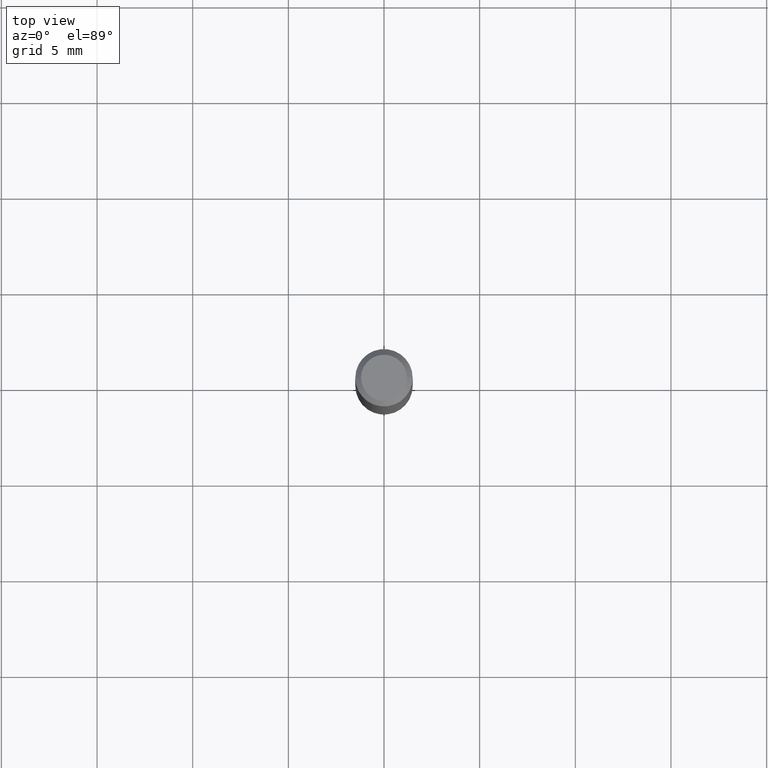
[diagram: clean part render]
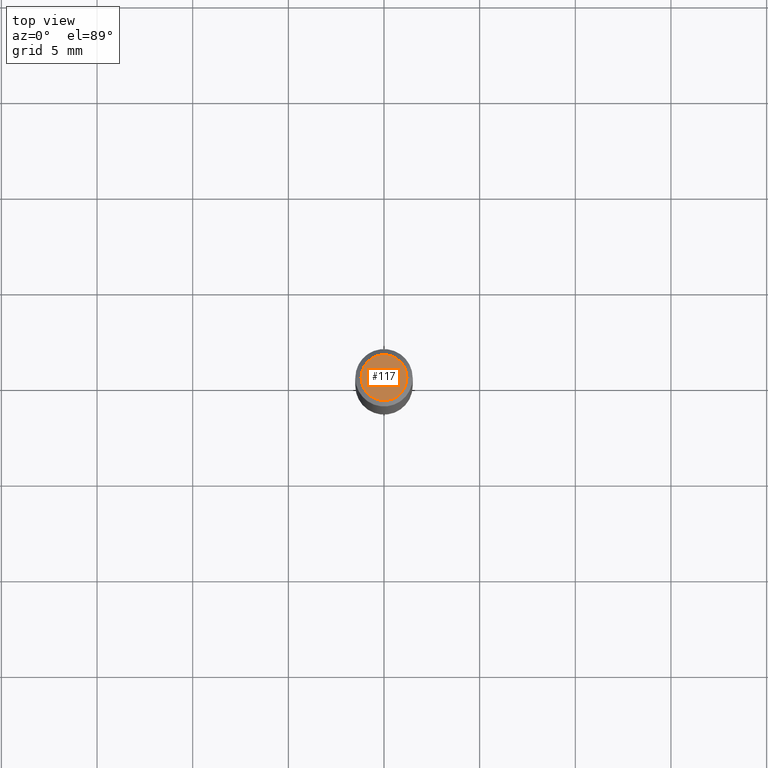
[diagram: same view with one face highlighted and labeled with its STEP entity id]
A machine part, top view. The second image highlights one B-rep face of the part: STEP entity #117.
In plain terms, the highlighted planar face has unit normal (0, -0, -1).
Its self-contained STEP definition (entity closure, byte-faithful):
#10 = DIRECTION ( 'NONE',  ( -2.445468806185136597E-29, 3.491481338843145583E-15, 1.000000000000000000 ) ) ;
#33 = DIRECTION ( 'NONE',  ( -2.445468806185136597E-29, 3.491481338843145583E-15, 1.000000000000000000 ) ) ;
#49 = ORIENTED_EDGE ( 'NONE', *, *, #300, .T. ) ;
#72 = DIRECTION ( 'NONE',  ( 1.000000000000000000, -6.982962677686266711E-15, 4.876185090822587894E-29 ) ) ;
#74 = PLANE ( 'NONE',  #421 ) ;
#79 = AXIS2_PLACEMENT_3D ( 'NONE', #202, #10, #233 ) ;
#102 = CARTESIAN_POINT ( 'NONE',  ( 4.132873053354867254E-48, -5.900647395337818946E-34, -1.690012582823346072E-19 ) ) ;
#117 = ADVANCED_FACE ( 'NONE', ( #484 ), #74, .F. ) ;
#141 = VERTEX_POINT ( 'NONE', #359 ) ;
#169 = EDGE_LOOP ( 'NONE', ( #318, #49 ) ) ;
#173 = CARTESIAN_POINT ( 'NONE',  ( -0.04724000000000000421, 3.504923541997677355E-16, -3.380025165670481712E-19 ) ) ;
#198 = VERTEX_POINT ( 'NONE', #173 ) ;
#202 = CARTESIAN_POINT ( 'NONE',  ( 8.265746106709734507E-48, -1.180129479067563789E-33, -3.380025165646692144E-19 ) ) ;
#233 = DIRECTION ( 'NONE',  ( 1.000000000000000000, -6.982962677686266711E-15, 4.876185090822587894E-29 ) ) ;
#256 = DIRECTION ( 'NONE',  ( 2.438088387897960049E-29, -3.491481338843145188E-15, -1.000000000000000000 ) ) ;
#260 = EDGE_CURVE ( 'NONE', #198, #141, #382, .T. ) ;
#300 = EDGE_CURVE ( 'NONE', #141, #198, #355, .T. ) ;
#318 = ORIENTED_EDGE ( 'NONE', *, *, #260, .T. ) ;
#355 = CIRCLE ( 'NONE', #79, 0.04724000000000000421 ) ;
#359 = CARTESIAN_POINT ( 'NONE',  ( 0.04724000000000000421, -3.852183633974369345E-16, -3.380025165621689721E-19 ) ) ;
#382 = CIRCLE ( 'NONE', #450, 0.04724000000000000421 ) ;
#416 = DIRECTION ( 'NONE',  ( -1.000000000000000000, 6.982962677686265922E-15, -4.876176775795935793E-29 ) ) ;
#421 = AXIS2_PLACEMENT_3D ( 'NONE', #102, #256, #416 ) ;
#450 = AXIS2_PLACEMENT_3D ( 'NONE', #488, #33, #72 ) ;
#484 = FACE_OUTER_BOUND ( 'NONE', #169, .T. ) ;
#488 = CARTESIAN_POINT ( 'NONE',  ( 8.265746106709734507E-48, -1.180129479067563789E-33, -3.380025165646692144E-19 ) ) ;